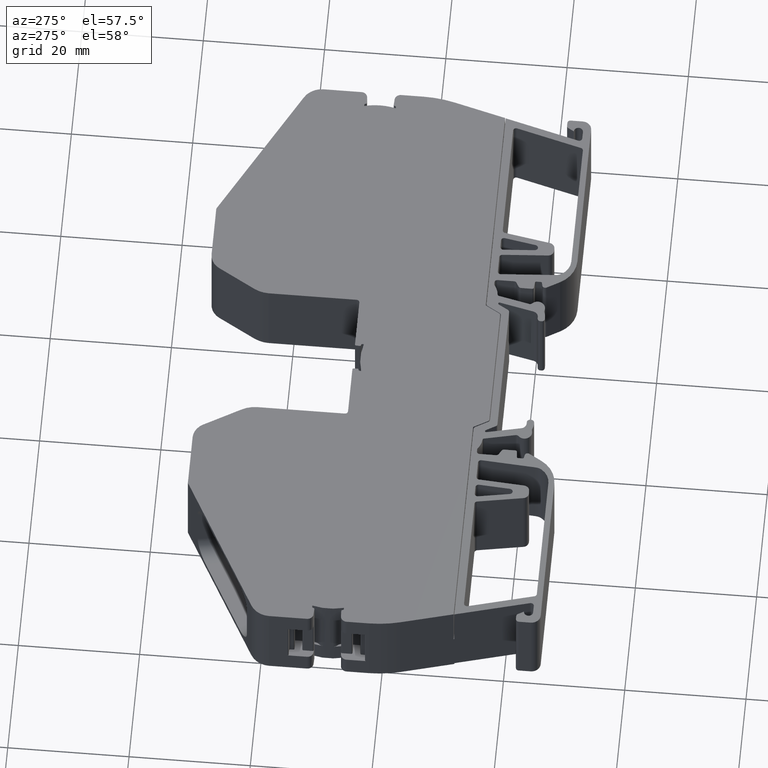
[diagram: clean part render]
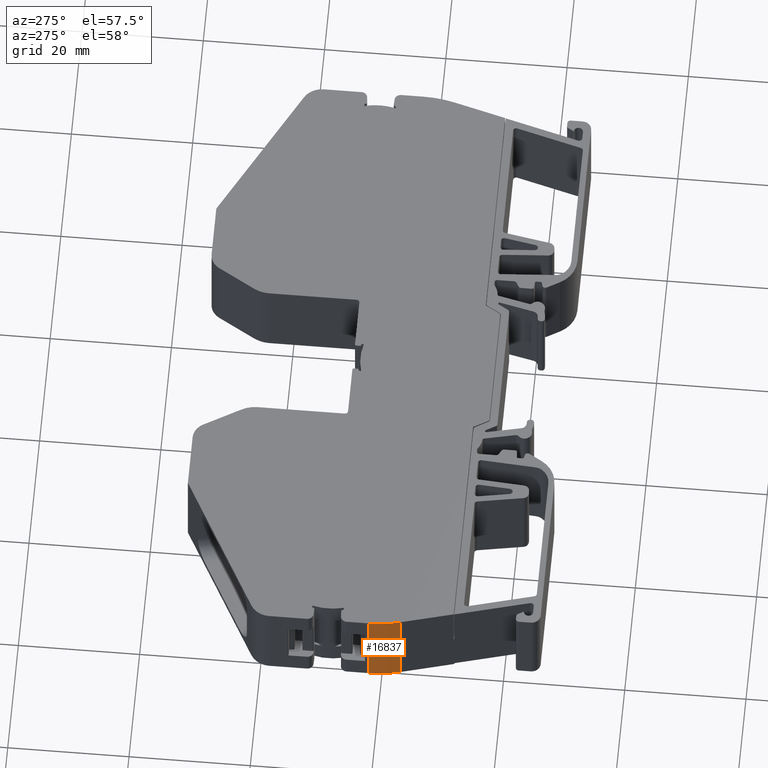
[diagram: same view with one face highlighted and labeled with its STEP entity id]
A machine part, auxiliary view. The second image highlights one B-rep face of the part: STEP entity #16837.
In plain terms, the highlighted cylindrical surface (partial cylindrical patch) has radius 20 mm, axis along (0, 0, 1).
Its self-contained STEP definition (entity closure, byte-faithful):
#515 = CARTESIAN_POINT ( 'NONE',  ( 1298.507053994932000, 422.0725514345485300, 15.09999999999998900 ) ) ;
#517 = DIRECTION ( 'NONE',  ( -0.0000000000000000000, -0.0000000000000000000, -1.000000000000000000 ) ) ;
#553 = DIRECTION ( 'NONE',  ( 1.000000000000000000, 0.0000000000000000000, 0.0000000000000000000 ) ) ;
#693 = DIRECTION ( 'NONE',  ( -0.0000000000000000000, -0.0000000000000000000, -1.000000000000000000 ) ) ;
#705 = CARTESIAN_POINT ( 'NONE',  ( 1279.188440239205600, 416.8965467236529300, -113.6660136188508800 ) ) ;
#707 = DIRECTION ( 'NONE',  ( -0.0000000000000000000, -0.0000000000000000000, -1.000000000000000000 ) ) ;
#708 = LINE ( 'NONE', #714, #6504 ) ;
#709 = LINE ( 'NONE', #705, #6467 ) ;
#714 = CARTESIAN_POINT ( 'NONE',  ( 1278.507057439682300, 422.0725391409695200, -113.6660136188508800 ) ) ;
#765 = DIRECTION ( 'NONE',  ( 0.0000000000000000000, 0.0000000000000000000, 1.000000000000000000 ) ) ;
#781 = CARTESIAN_POINT ( 'NONE',  ( 1298.507053994932000, 422.0725514345485300, -0.1000000000000028600 ) ) ;
#792 = DIRECTION ( 'NONE',  ( 1.000000000000000000, 0.0000000000000000000, 0.0000000000000000000 ) ) ;
#1640 = CARTESIAN_POINT ( 'NONE',  ( 1279.188440239206300, 416.8965467236504900, -0.1000000000000021400 ) ) ;
#1685 = CARTESIAN_POINT ( 'NONE',  ( 1278.507057439682300, 422.0725391409695200, 15.09999999999999300 ) ) ;
#1707 = CARTESIAN_POINT ( 'NONE',  ( 1278.507057439682300, 422.0725391409695200, -0.1000000000000021400 ) ) ;
#1709 = CARTESIAN_POINT ( 'NONE',  ( 1279.188440239206300, 416.8965467236507200, 15.10000000000003000 ) ) ;
#2425 = CYLINDRICAL_SURFACE ( 'NONE', #7057, 19.99999655525353100 ) ;
#2430 = CARTESIAN_POINT ( 'NONE',  ( 1298.507053994932000, 422.0725514345485300, -113.6660136188508800 ) ) ;
#2432 = DIRECTION ( 'NONE',  ( 0.0000000000000000000, 0.0000000000000000000, 1.000000000000000000 ) ) ;
#2434 = DIRECTION ( 'NONE',  ( 1.000000000000000000, 0.0000000000000000000, 0.0000000000000000000 ) ) ;
#2449 = FACE_OUTER_BOUND ( 'NONE', #5313, .T. ) ;
#4412 = EDGE_CURVE ( 'NONE', #12078, #12102, #6378, .T. ) ;
#4467 = EDGE_CURVE ( 'NONE', #12078, #12044, #709, .T. ) ;
#4468 = EDGE_CURVE ( 'NONE', #12102, #12115, #708, .T. ) ;
#4494 = EDGE_CURVE ( 'NONE', #12115, #12044, #6455, .T. ) ;
#5313 = EDGE_LOOP ( 'NONE', ( #5686, #5715, #5669, #5687 ) ) ;
#5669 = ORIENTED_EDGE ( 'NONE', *, *, #4467, .F. ) ;
#5686 = ORIENTED_EDGE ( 'NONE', *, *, #4468, .T. ) ;
#5687 = ORIENTED_EDGE ( 'NONE', *, *, #4412, .T. ) ;
#5715 = ORIENTED_EDGE ( 'NONE', *, *, #4494, .T. ) ;
#6378 = CIRCLE ( 'NONE', #6380, 19.99999655525353100 ) ;
#6380 = AXIS2_PLACEMENT_3D ( 'NONE', #515, #517, #553 ) ;
#6455 = CIRCLE ( 'NONE', #6500, 19.99999655525353100 ) ;
#6467 = VECTOR ( 'NONE', #707, 1000.000000000000000 ) ;
#6500 = AXIS2_PLACEMENT_3D ( 'NONE', #781, #765, #792 ) ;
#6504 = VECTOR ( 'NONE', #693, 1000.000000000000000 ) ;
#7057 = AXIS2_PLACEMENT_3D ( 'NONE', #2430, #2432, #2434 ) ;
#12044 = VERTEX_POINT ( 'NONE', #1640 ) ;
#12078 = VERTEX_POINT ( 'NONE', #1709 ) ;
#12102 = VERTEX_POINT ( 'NONE', #1685 ) ;
#12115 = VERTEX_POINT ( 'NONE', #1707 ) ;
#16837 = ADVANCED_FACE ( 'NONE', ( #2449 ), #2425, .T. ) ;